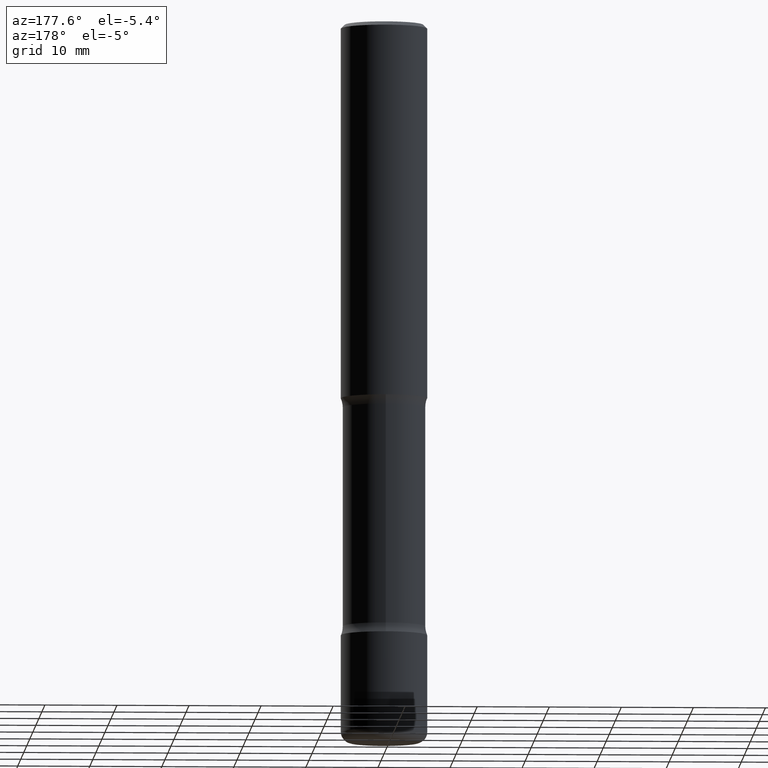
[diagram: clean part render]
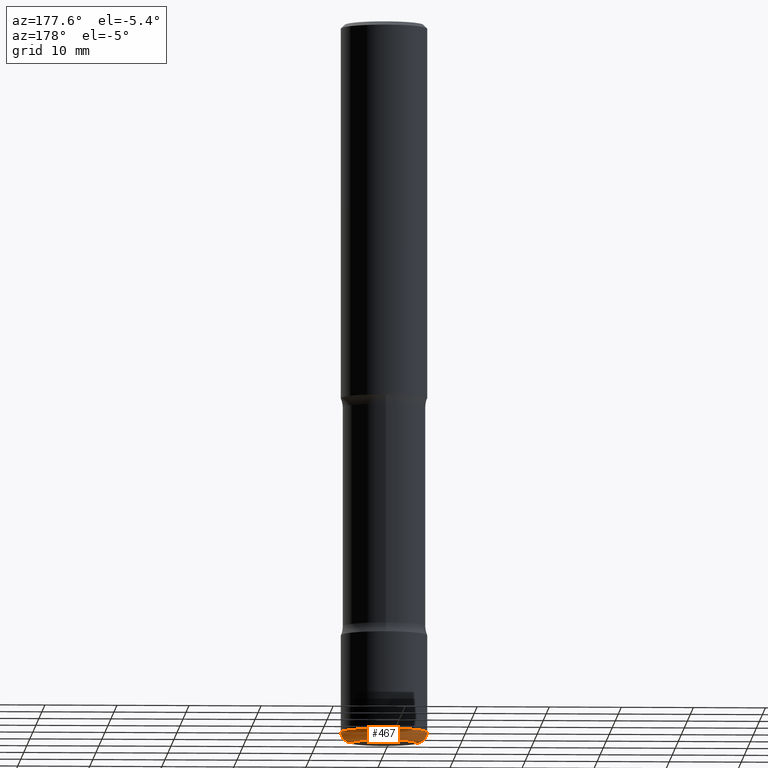
[diagram: same view with one face highlighted and labeled with its STEP entity id]
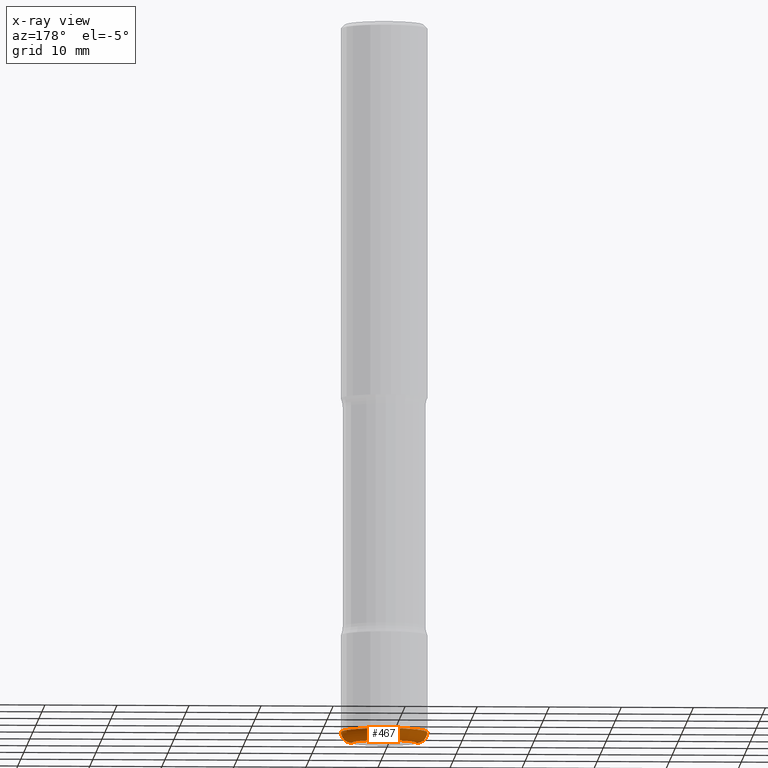
[diagram: x-ray of the same camera — body ghosted, the highlighted face saturated]
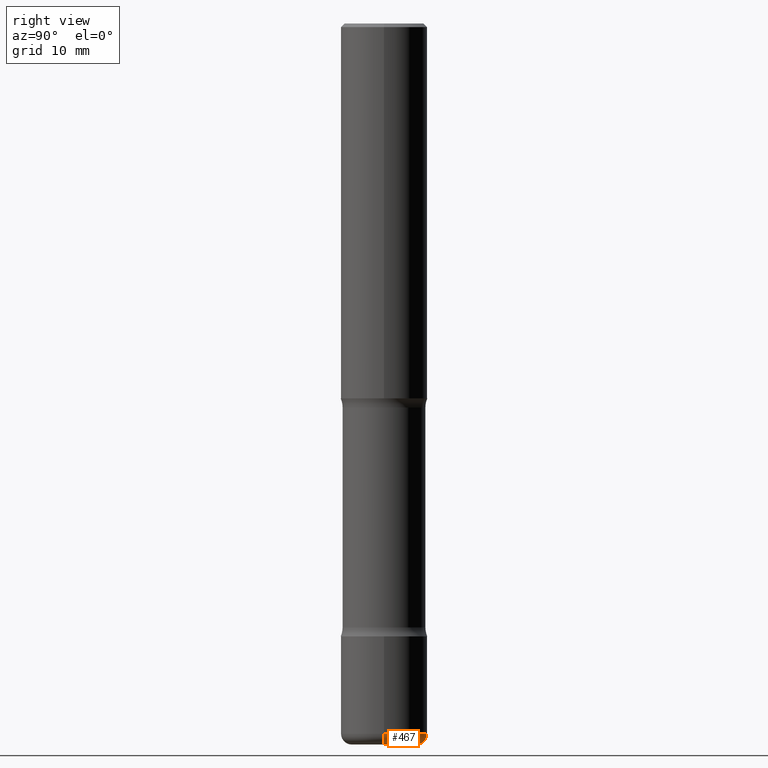
[diagram: same view with one face highlighted and labeled with its STEP entity id]
A machine part, auxiliary view. The second image highlights one B-rep face of the part: STEP entity #467.
The next image is the same camera in x-ray: the body ghosted, the highlighted face saturated — about 0% of this face is hidden behind the body in this view.
A second angle (right view) of the same face is appended — the face is thin or edge-on in the first view.
In plain terms, the highlighted toroidal blend (fillet) surface has major radius 4.4983 mm and minor (blend) radius 1.5011 mm.
Its self-contained STEP definition (entity closure, byte-faithful):
#7 = DIRECTION ( 'NONE',  ( -2.445468806185136597E-29, 3.491481338843145583E-15, 1.000000000000000000 ) ) ;
#12 = DIRECTION ( 'NONE',  ( -2.445468806185136597E-29, 3.491481338843145583E-15, 1.000000000000000000 ) ) ;
#34 = ORIENTED_EDGE ( 'NONE', *, *, #346, .T. ) ;
#45 = AXIS2_PLACEMENT_3D ( 'NONE', #544, #419, #205 ) ;
#54 = TOROIDAL_SURFACE ( 'NONE', #370, 0.1771000000000005625, 0.05909999999999970138 ) ;
#55 = EDGE_CURVE ( 'NONE', #470, #90, #72, .T. ) ;
#72 = CIRCLE ( 'NONE', #440, 0.05909999999999972220 ) ;
#90 = VERTEX_POINT ( 'NONE', #331 ) ;
#113 = CARTESIAN_POINT ( 'NONE',  ( 0.2362000000000004096, -1.518899126836933270E-14, -3.877900000000000347 ) ) ;
#115 = DIRECTION ( 'NONE',  ( 1.000000000000000000, -6.982962677686261977E-15, 0.000000000000000000 ) ) ;
#120 = CIRCLE ( 'NONE', #45, 0.2362000000000005762 ) ;
#129 = CARTESIAN_POINT ( 'NONE',  ( -0.1771000000000005625, -1.217445219401440118E-14, -3.936999999999999389 ) ) ;
#144 = EDGE_CURVE ( 'NONE', #549, #90, #120, .T. ) ;
#164 = CIRCLE ( 'NONE', #315, 0.1771000000000005625 ) ;
#184 = CARTESIAN_POINT ( 'NONE',  ( 9.627810689950881427E-29, -1.374596203102546184E-14, -3.936999999999999389 ) ) ;
#205 = DIRECTION ( 'NONE',  ( 1.000000000000000000, -6.982962677686263555E-15, 0.000000000000000000 ) ) ;
#207 = CARTESIAN_POINT ( 'NONE',  ( 0.1771000000000005625, -1.477629817411807505E-14, -3.877900000000000347 ) ) ;
#216 = ORIENTED_EDGE ( 'NONE', *, *, #144, .F. ) ;
#222 = DIRECTION ( 'NONE',  ( 1.000000000000000000, -6.982962677686265133E-15, 0.000000000000000000 ) ) ;
#223 = VERTEX_POINT ( 'NONE', #550 ) ;
#229 = EDGE_CURVE ( 'NONE', #223, #549, #414, .T. ) ;
#312 = CARTESIAN_POINT ( 'NONE',  ( -0.1771000000000005625, -1.228124429886869218E-14, -3.877900000000000347 ) ) ;
#315 = AXIS2_PLACEMENT_3D ( 'NONE', #184, #7, #222 ) ;
#320 = ORIENTED_EDGE ( 'NONE', *, *, #229, .F. ) ;
#331 = CARTESIAN_POINT ( 'NONE',  ( -0.2362000000000004096, -1.186131354203447347E-14, -3.877900000000000347 ) ) ;
#346 = EDGE_CURVE ( 'NONE', #223, #470, #164, .T. ) ;
#370 = AXIS2_PLACEMENT_3D ( 'NONE', #486, #12, #524 ) ;
#397 = ORIENTED_EDGE ( 'NONE', *, *, #55, .T. ) ;
#400 = FACE_OUTER_BOUND ( 'NONE', #439, .T. ) ;
#414 = CIRCLE ( 'NONE', #539, 0.05909999999999972220 ) ;
#419 = DIRECTION ( 'NONE',  ( -2.445468806185136597E-29, 3.491481338843145583E-15, 1.000000000000000000 ) ) ;
#430 = DIRECTION ( 'NONE',  ( -6.982962677686266711E-15, -1.000000000000000000, 3.491481338843145583E-15 ) ) ;
#439 = EDGE_LOOP ( 'NONE', ( #34, #397, #216, #320 ) ) ;
#440 = AXIS2_PLACEMENT_3D ( 'NONE', #312, #481, #536 ) ;
#467 = ADVANCED_FACE ( 'NONE', ( #400 ), #54, .T. ) ;
#470 = VERTEX_POINT ( 'NONE', #129 ) ;
#481 = DIRECTION ( 'NONE',  ( 7.105427357601001859E-15, 1.000000000000000000, -3.491481338843145583E-15 ) ) ;
#486 = CARTESIAN_POINT ( 'NONE',  ( 9.483283483505341216E-29, -1.353961548389983459E-14, -3.877900000000000347 ) ) ;
#524 = DIRECTION ( 'NONE',  ( 1.000000000000000000, -6.982962677686265133E-15, 4.883557194083111780E-29 ) ) ;
#536 = DIRECTION ( 'NONE',  ( -1.000000000000000000, 7.105427357600993181E-15, 0.000000000000000000 ) ) ;
#539 = AXIS2_PLACEMENT_3D ( 'NONE', #207, #430, #115 ) ;
#544 = CARTESIAN_POINT ( 'NONE',  ( 9.483283483505341216E-29, -1.353961548389983459E-14, -3.877900000000000347 ) ) ;
#549 = VERTEX_POINT ( 'NONE', #113 ) ;
#550 = CARTESIAN_POINT ( 'NONE',  ( 0.1771000000000005625, -1.498264472124370230E-14, -3.936999999999999389 ) ) ;